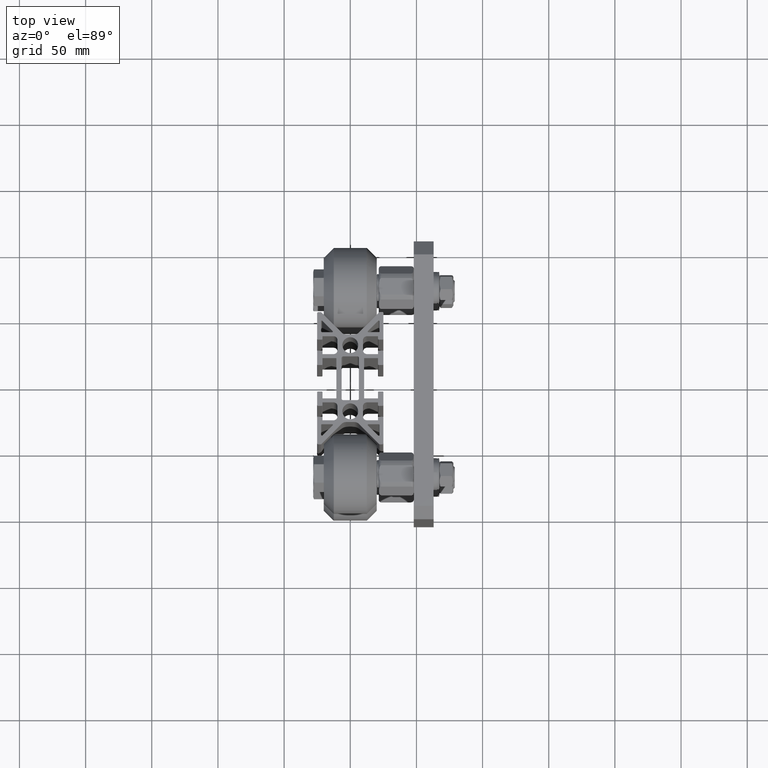
[diagram: clean part render]
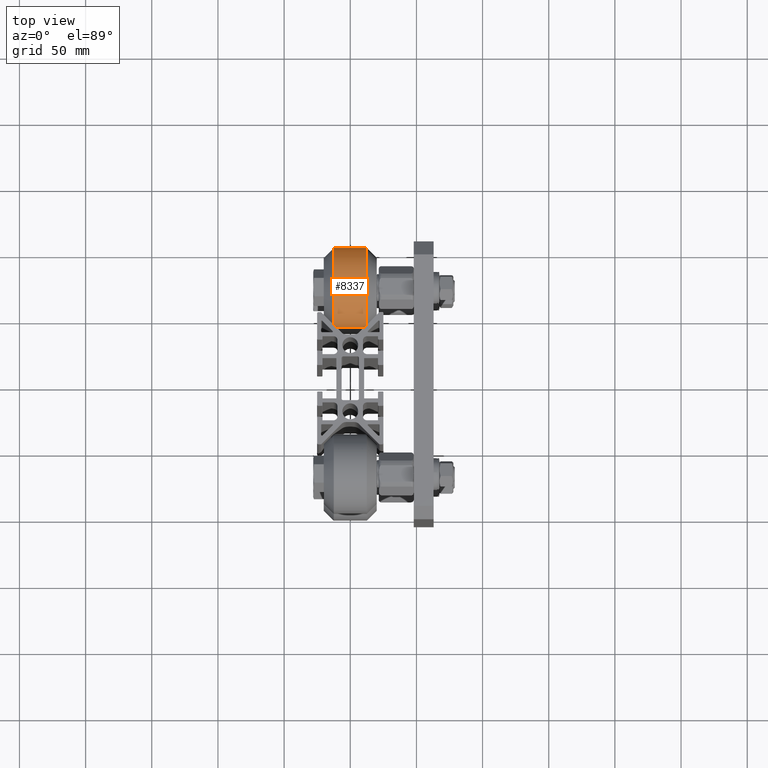
[diagram: same view with one face highlighted and labeled with its STEP entity id]
A machine part, top view. The second image highlights one B-rep face of the part: STEP entity #8337.
In plain terms, the highlighted cylindrical surface (bore or boss wall) has radius 30 mm, axis along (1, -0, -0).
Its self-contained STEP definition (entity closure, byte-faithful):
#496=CYLINDRICAL_SURFACE('',#9233,30.);
#753=FACE_OUTER_BOUND('',#1220,.T.);
#1220=EDGE_LOOP('',(#6295,#6296,#6297,#6298));
#1697=CIRCLE('',#9232,30.);
#1698=CIRCLE('',#9234,30.);
#2272=LINE('',#13513,#2895);
#2895=VECTOR('',#10798,30.);
#3530=VERTEX_POINT('',#13507);
#3531=VERTEX_POINT('',#13511);
#4543=EDGE_CURVE('',#3530,#3530,#1697,.T.);
#4545=EDGE_CURVE('',#3531,#3531,#1698,.T.);
#4546=EDGE_CURVE('',#3531,#3530,#2272,.T.);
#6295=ORIENTED_EDGE('',*,*,#4545,.F.);
#6296=ORIENTED_EDGE('',*,*,#4546,.T.);
#6297=ORIENTED_EDGE('',*,*,#4543,.T.);
#6298=ORIENTED_EDGE('',*,*,#4546,.F.);
#8337=ADVANCED_FACE('',(#753),#496,.T.);
#9232=AXIS2_PLACEMENT_3D('',#13508,#10791,#10792);
#9233=AXIS2_PLACEMENT_3D('',#13510,#10794,#10795);
#9234=AXIS2_PLACEMENT_3D('',#13512,#10796,#10797);
#10791=DIRECTION('center_axis',(1.,0.,0.));
#10792=DIRECTION('ref_axis',(0.,1.,0.));
#10794=DIRECTION('center_axis',(1.,0.,0.));
#10795=DIRECTION('ref_axis',(0.,1.,0.));
#10796=DIRECTION('center_axis',(1.,0.,0.));
#10797=DIRECTION('ref_axis',(0.,1.,0.));
#10798=DIRECTION('',(-1.,0.,0.));
#13507=CARTESIAN_POINT('',(-12.5,-30.,-3.67394039744206E-15));
#13508=CARTESIAN_POINT('Origin',(-12.5,0.,0.));
#13510=CARTESIAN_POINT('Origin',(0.,0.,0.));
#13511=CARTESIAN_POINT('',(12.5,-30.,-3.67394039744206E-15));
#13512=CARTESIAN_POINT('Origin',(12.5,0.,0.));
#13513=CARTESIAN_POINT('',(0.,-30.,-3.67394039744206E-15));